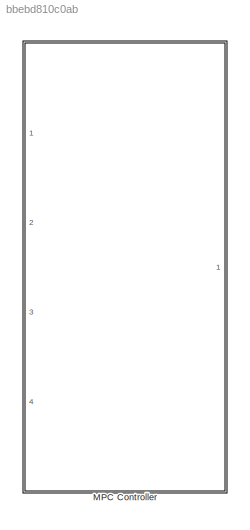
MODEL slx_bbebd810c0ab
KIND model
CONFIG AbsTol = auto
CONFIG EnableMultiTasking = off
CONFIG FixedStep = auto
CONFIG MaxStep = auto
CONFIG MinStep = auto
CONFIG RelTol = 1e-3
CONFIG SampleTimeConstraint = Unconstrained
CONFIG Solver = VariableStepAuto
CONFIG SolverName = VariableStepAuto
CONFIG StartTime = 0.0
CONFIG StopTime = 10.0
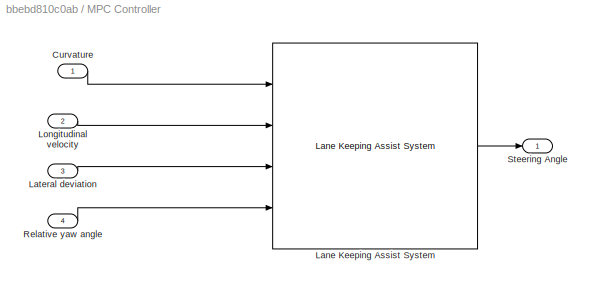
BLOCK [SubSystem] MPC Controller 
  Ports = [4, 1]
  RequestExecContextInheritance = off
BLOCK [Inport] MPC Controller /Curvature
  IconDisplay = Port number
BLOCK [Reference] MPC Controller /Lane Keeping Assist System  REF=mpcadaslib/Lane Keeping Assist System
  Ports = [4, 1]
  SourceBlock = mpcadaslib/Lane Keeping Assist System
  SourceProductBaseCode = MP
  SourceProductName = Model Predictive Control Toolbox
  SourceType = Lane Keeping Assist (LKA) System
BLOCK [Inport] MPC Controller /Lateral deviation
  IconDisplay = Port number
  Port = 3
BLOCK [Inport] MPC Controller /Longitudinal velocity
  IconDisplay = Port number
  Port = 2
BLOCK [Inport] MPC Controller /Relative yaw angle
  IconDisplay = Port number
  Port = 4
BLOCK [Outport] MPC Controller /Steering Angle
  IconDisplay = Port number
  VectorParamsAs1DForOutWhenUnconnected = off
LINE MPC Controller /Curvature:1 -> MPC Controller /Lane Keeping Assist System:1
LINE MPC Controller /Lane Keeping Assist System:1 -> MPC Controller /Steering Angle:1
LINE MPC Controller /Lateral deviation:1 -> MPC Controller /Lane Keeping Assist System:3
LINE MPC Controller /Longitudinal velocity:1 -> MPC Controller /Lane Keeping Assist System:2
LINE MPC Controller /Relative yaw angle:1 -> MPC Controller /Lane Keeping Assist System:4
